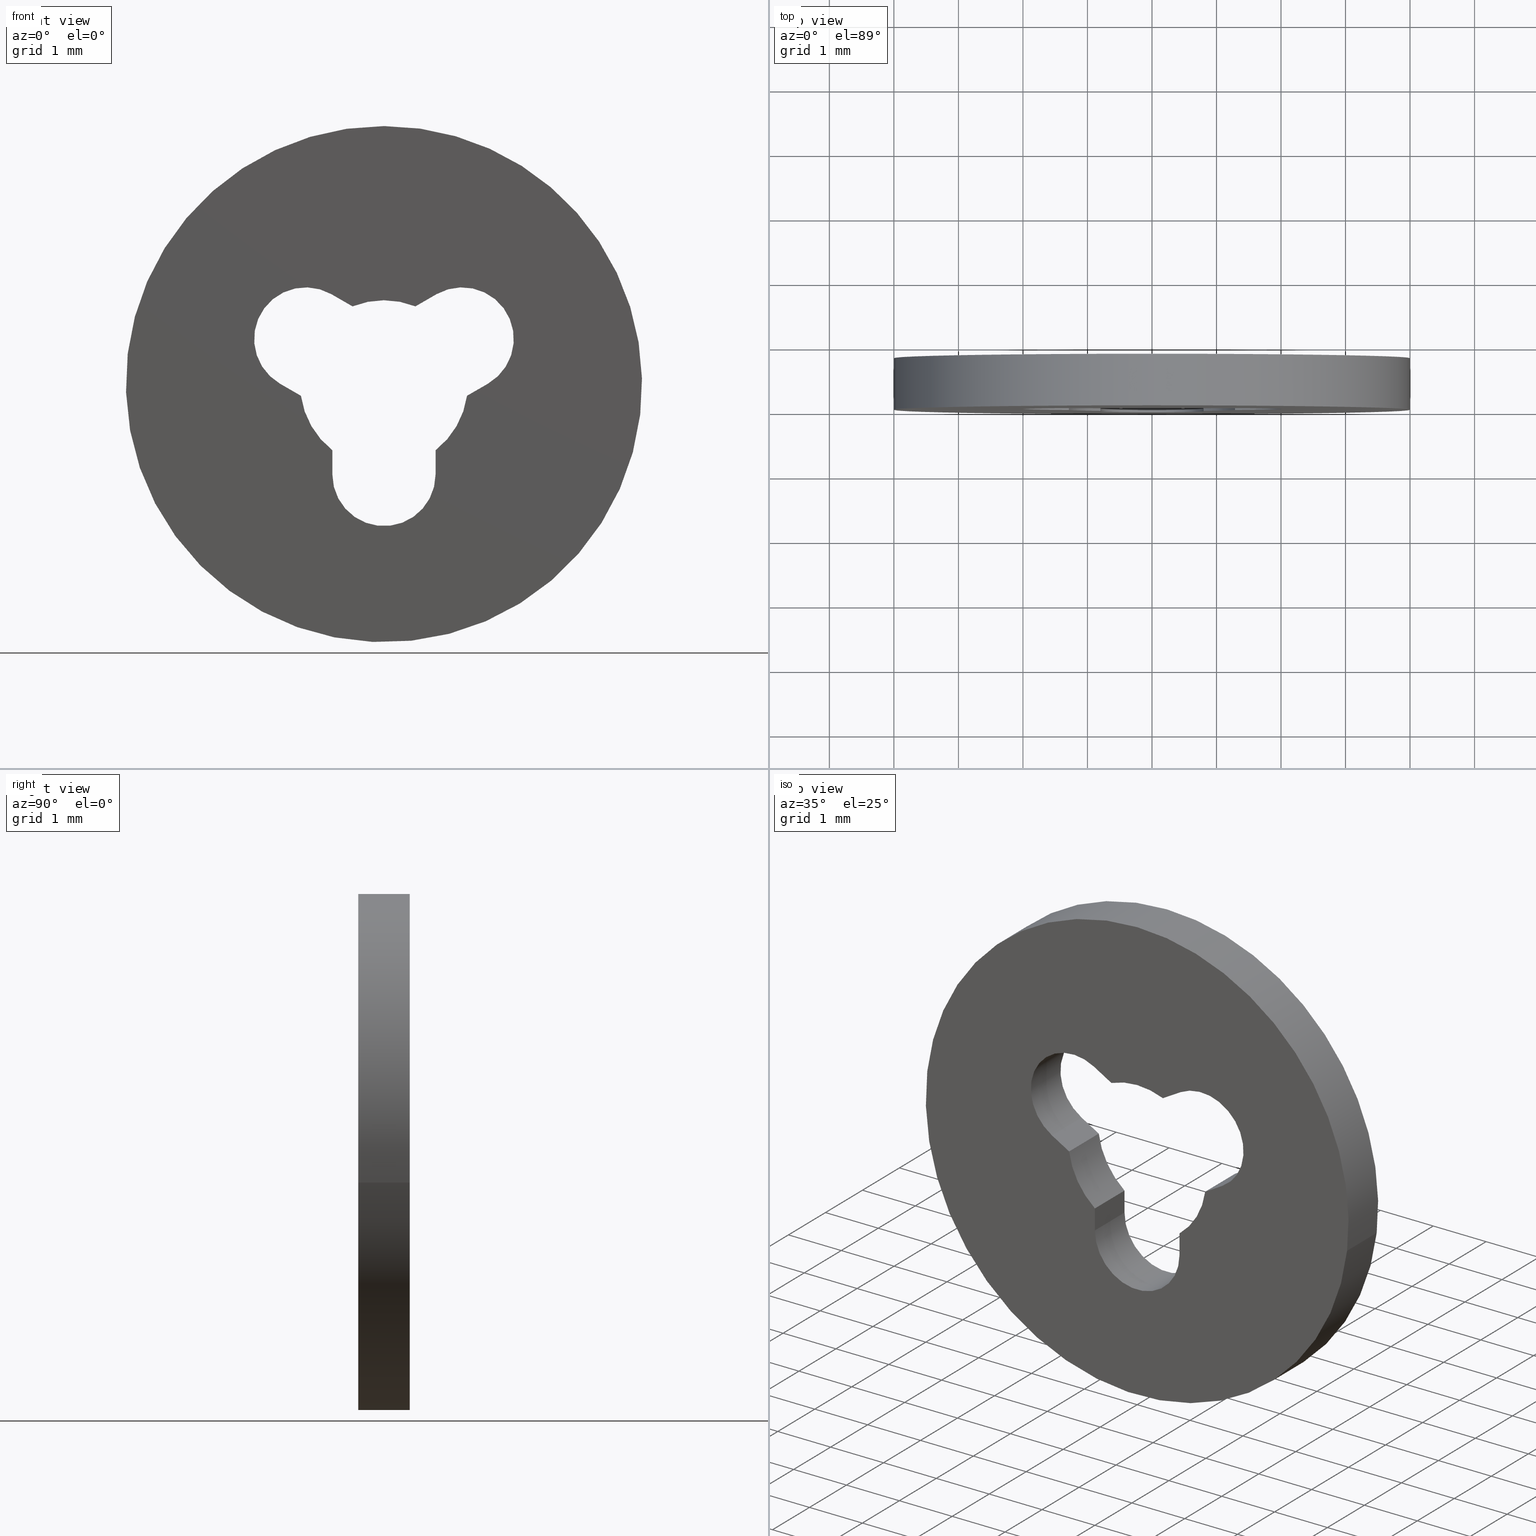
[diagram: canonical four-view strip — front | top / right | iso, engineering-drawing reading convention]
A machine part, canonical four-view strip (front | top / right | iso — engineering-drawing reading convention). The complete STEP part file that produces these views, byte-faithful:
ISO-10303-21;
HEADER;

FILE_DESCRIPTION( (''), '2;1');
FILE_NAME ('PC007.134708.TM_147V_1BK_6098.stp','2025-07-23T13:38:27',(''),(''),'spGate 19.8.4 (****-****-****-****)','','');

FILE_SCHEMA (('AUTOMOTIVE_DESIGN'));
ENDSEC;

DATA;
#10=(GEOMETRIC_REPRESENTATION_CONTEXT(3) GLOBAL_UNCERTAINTY_ASSIGNED_CONTEXT((#11)) GLOBAL_UNIT_ASSIGNED_CONTEXT((#12,#13,#14)) REPRESENTATION_CONTEXT('ID1','3D'));
#11=UNCERTAINTY_MEASURE_WITH_UNIT(LENGTH_MEASURE(0.01),#15,'DISTANCE_ACCURACY_VALUE','Maximum model space distance between geometric entities at asserted connectivities');
#12=(NAMED_UNIT(*) SI_UNIT($,.STERADIAN.) SOLID_ANGLE_UNIT());
#13=(CONVERSION_BASED_UNIT('DEGREE',#16) NAMED_UNIT(#17) PLANE_ANGLE_UNIT());
#14=(LENGTH_UNIT() NAMED_UNIT(*) SI_UNIT(.MILLI.,.METRE.));
#15=(LENGTH_UNIT() NAMED_UNIT(*) SI_UNIT(.MILLI.,.METRE.));
#16=PLANE_ANGLE_MEASURE_WITH_UNIT(PLANE_ANGLE_MEASURE(0.01745329252),#18);
#17=DIMENSIONAL_EXPONENTS(0.0,0.0,0.0,0.0,0.0,0.0,0.0);
#18=(NAMED_UNIT(*) PLANE_ANGLE_UNIT() SI_UNIT($,.RADIAN.));
#19=MANIFOLD_SOLID_BREP('TM_147V_1BK',#31);
#20=ADVANCED_BREP_SHAPE_REPRESENTATION('',(#19),#10);
#21=APPLICATION_CONTEXT('');
#22=APPLICATION_PROTOCOL_DEFINITION('International Standard','automotive_design',1999,#21);
#23=PRODUCT_DEFINITION_CONTEXT('',#21,'design');
#24=PRODUCT_CONTEXT('',#21,'mechanical');
#25=PRODUCT('','','',(#24));
#26=PRODUCT_DEFINITION_FORMATION_WITH_SPECIFIED_SOURCE('','',#25,.NOT_KNOWN.);
#27=PRODUCT_RELATED_PRODUCT_CATEGORY('tool','tool',(#25));
#28=PRODUCT_DEFINITION('','',#26,#23);
#29=PRODUCT_DEFINITION_SHAPE('','',#28);
#30=SHAPE_DEFINITION_REPRESENTATION(#29,#20);
#31=CLOSED_SHELL('',(#40,#41,#42,#43,#44,#45,#46,#47,#48,#49,#50,#51,#52,#53,#54,#55));
#32=COLOUR_RGB('',0.00000000000E+00,0.00000000000E+00,0.00000000000E+00);
#33=FILL_AREA_STYLE_COLOUR('',#32);
#34=FILL_AREA_STYLE('',(#33));
#35=SURFACE_STYLE_FILL_AREA(#34);
#36=SURFACE_SIDE_STYLE('',(#35));
#37=SURFACE_STYLE_USAGE(.BOTH.,#36);
#38=PRESENTATION_STYLE_ASSIGNMENT((#37));
#39=STYLED_ITEM('',(#38),#19);
#40=ADVANCED_FACE('',(#57,#58),#56,.T.);
#41=ADVANCED_FACE('',(#68,#69),#67,.F.);
#42=ADVANCED_FACE('',(#79),#78,.F.);
#43=ADVANCED_FACE('',(#89),#88,.F.);
#44=ADVANCED_FACE('',(#99),#98,.F.);
#45=ADVANCED_FACE('',(#109),#108,.F.);
#46=ADVANCED_FACE('',(#119),#118,.F.);
#47=ADVANCED_FACE('',(#129),#128,.F.);
#48=ADVANCED_FACE('',(#139),#138,.F.);
#49=ADVANCED_FACE('',(#149),#148,.F.);
#50=ADVANCED_FACE('',(#159),#158,.F.);
#51=ADVANCED_FACE('',(#169),#168,.F.);
#52=ADVANCED_FACE('',(#179),#178,.F.);
#53=ADVANCED_FACE('',(#189),#188,.F.);
#54=ADVANCED_FACE('',(#199),#198,.T.);
#55=ADVANCED_FACE('',(#209),#208,.T.);
#56=PLANE('',#221);
#57=FACE_OUTER_BOUND('',#222,.T.);
#58=FACE_BOUND('',#223,.T.);
#59=COLOUR_RGB('',1.00000000000E+00,1.00000000000E+00,1.00000000000E+00);
#60=FILL_AREA_STYLE_COLOUR('',#59);
#61=FILL_AREA_STYLE('',(#60));
#62=SURFACE_STYLE_FILL_AREA(#61);
#63=SURFACE_SIDE_STYLE('',(#62));
#64=SURFACE_STYLE_USAGE(.BOTH.,#63);
#65=PRESENTATION_STYLE_ASSIGNMENT((#64));
#66=STYLED_ITEM('',(#65),#40);
#67=PLANE('',#227);
#68=FACE_OUTER_BOUND('',#228,.T.);
#69=FACE_BOUND('',#229,.T.);
#70=COLOUR_RGB('',1.00000000000E+00,1.00000000000E+00,1.00000000000E+00);
#71=FILL_AREA_STYLE_COLOUR('',#70);
#72=FILL_AREA_STYLE('',(#71));
#73=SURFACE_STYLE_FILL_AREA(#72);
#74=SURFACE_SIDE_STYLE('',(#73));
#75=SURFACE_STYLE_USAGE(.BOTH.,#74);
#76=PRESENTATION_STYLE_ASSIGNMENT((#75));
#77=STYLED_ITEM('',(#76),#41);
#78=PLANE('',#233);
#79=FACE_OUTER_BOUND('',#234,.T.);
#80=COLOUR_RGB('',1.00000000000E+00,1.00000000000E+00,1.00000000000E+00);
#81=FILL_AREA_STYLE_COLOUR('',#80);
#82=FILL_AREA_STYLE('',(#81));
#83=SURFACE_STYLE_FILL_AREA(#82);
#84=SURFACE_SIDE_STYLE('',(#83));
#85=SURFACE_STYLE_USAGE(.BOTH.,#84);
#86=PRESENTATION_STYLE_ASSIGNMENT((#85));
#87=STYLED_ITEM('',(#86),#42);
#88=CYLINDRICAL_SURFACE('',#238,1.30000000000E+00);
#89=FACE_OUTER_BOUND('',#239,.T.);
#90=COLOUR_RGB('',1.00000000000E+00,1.00000000000E+00,1.00000000000E+00);
#91=FILL_AREA_STYLE_COLOUR('',#90);
#92=FILL_AREA_STYLE('',(#91));
#93=SURFACE_STYLE_FILL_AREA(#92);
#94=SURFACE_SIDE_STYLE('',(#93));
#95=SURFACE_STYLE_USAGE(.BOTH.,#94);
#96=PRESENTATION_STYLE_ASSIGNMENT((#95));
#97=STYLED_ITEM('',(#96),#43);
#98=PLANE('',#243);
#99=FACE_OUTER_BOUND('',#244,.T.);
#100=COLOUR_RGB('',1.00000000000E+00,1.00000000000E+00,1.00000000000E+00);
#101=FILL_AREA_STYLE_COLOUR('',#100);
#102=FILL_AREA_STYLE('',(#101));
#103=SURFACE_STYLE_FILL_AREA(#102);
#104=SURFACE_SIDE_STYLE('',(#103));
#105=SURFACE_STYLE_USAGE(.BOTH.,#104);
#106=PRESENTATION_STYLE_ASSIGNMENT((#105));
#107=STYLED_ITEM('',(#106),#44);
#108=CYLINDRICAL_SURFACE('',#248,8.00000000000E-01);
#109=FACE_OUTER_BOUND('',#249,.T.);
#110=COLOUR_RGB('',1.00000000000E+00,1.00000000000E+00,1.00000000000E+00);
#111=FILL_AREA_STYLE_COLOUR('',#110);
#112=FILL_AREA_STYLE('',(#111));
#113=SURFACE_STYLE_FILL_AREA(#112);
#114=SURFACE_SIDE_STYLE('',(#113));
#115=SURFACE_STYLE_USAGE(.BOTH.,#114);
#116=PRESENTATION_STYLE_ASSIGNMENT((#115));
#117=STYLED_ITEM('',(#116),#45);
#118=PLANE('',#253);
#119=FACE_OUTER_BOUND('',#254,.T.);
#120=COLOUR_RGB('',1.00000000000E+00,1.00000000000E+00,1.00000000000E+00);
#121=FILL_AREA_STYLE_COLOUR('',#120);
#122=FILL_AREA_STYLE('',(#121));
#123=SURFACE_STYLE_FILL_AREA(#122);
#124=SURFACE_SIDE_STYLE('',(#123));
#125=SURFACE_STYLE_USAGE(.BOTH.,#124);
#126=PRESENTATION_STYLE_ASSIGNMENT((#125));
#127=STYLED_ITEM('',(#126),#46);
#128=CYLINDRICAL_SURFACE('',#258,1.30000000000E+00);
#129=FACE_OUTER_BOUND('',#259,.T.);
#130=COLOUR_RGB('',1.00000000000E+00,1.00000000000E+00,1.00000000000E+00);
#131=FILL_AREA_STYLE_COLOUR('',#130);
#132=FILL_AREA_STYLE('',(#131));
#133=SURFACE_STYLE_FILL_AREA(#132);
#134=SURFACE_SIDE_STYLE('',(#133));
#135=SURFACE_STYLE_USAGE(.BOTH.,#134);
#136=PRESENTATION_STYLE_ASSIGNMENT((#135));
#137=STYLED_ITEM('',(#136),#47);
#138=PLANE('',#263);
#139=FACE_OUTER_BOUND('',#264,.T.);
#140=COLOUR_RGB('',1.00000000000E+00,1.00000000000E+00,1.00000000000E+00);
#141=FILL_AREA_STYLE_COLOUR('',#140);
#142=FILL_AREA_STYLE('',(#141));
#143=SURFACE_STYLE_FILL_AREA(#142);
#144=SURFACE_SIDE_STYLE('',(#143));
#145=SURFACE_STYLE_USAGE(.BOTH.,#144);
#146=PRESENTATION_STYLE_ASSIGNMENT((#145));
#147=STYLED_ITEM('',(#146),#48);
#148=CYLINDRICAL_SURFACE('',#268,8.00034399239E-01);
#149=FACE_OUTER_BOUND('',#269,.T.);
#150=COLOUR_RGB('',1.00000000000E+00,1.00000000000E+00,1.00000000000E+00);
#151=FILL_AREA_STYLE_COLOUR('',#150);
#152=FILL_AREA_STYLE('',(#151));
#153=SURFACE_STYLE_FILL_AREA(#152);
#154=SURFACE_SIDE_STYLE('',(#153));
#155=SURFACE_STYLE_USAGE(.BOTH.,#154);
#156=PRESENTATION_STYLE_ASSIGNMENT((#155));
#157=STYLED_ITEM('',(#156),#49);
#158=PLANE('',#273);
#159=FACE_OUTER_BOUND('',#274,.T.);
#160=COLOUR_RGB('',1.00000000000E+00,1.00000000000E+00,1.00000000000E+00);
#161=FILL_AREA_STYLE_COLOUR('',#160);
#162=FILL_AREA_STYLE('',(#161));
#163=SURFACE_STYLE_FILL_AREA(#162);
#164=SURFACE_SIDE_STYLE('',(#163));
#165=SURFACE_STYLE_USAGE(.BOTH.,#164);
#166=PRESENTATION_STYLE_ASSIGNMENT((#165));
#167=STYLED_ITEM('',(#166),#50);
#168=CYLINDRICAL_SURFACE('',#278,1.30000000000E+00);
#169=FACE_OUTER_BOUND('',#279,.T.);
#170=COLOUR_RGB('',1.00000000000E+00,1.00000000000E+00,1.00000000000E+00);
#171=FILL_AREA_STYLE_COLOUR('',#170);
#172=FILL_AREA_STYLE('',(#171));
#173=SURFACE_STYLE_FILL_AREA(#172);
#174=SURFACE_SIDE_STYLE('',(#173));
#175=SURFACE_STYLE_USAGE(.BOTH.,#174);
#176=PRESENTATION_STYLE_ASSIGNMENT((#175));
#177=STYLED_ITEM('',(#176),#51);
#178=PLANE('',#283);
#179=FACE_OUTER_BOUND('',#284,.T.);
#180=COLOUR_RGB('',1.00000000000E+00,1.00000000000E+00,1.00000000000E+00);
#181=FILL_AREA_STYLE_COLOUR('',#180);
#182=FILL_AREA_STYLE('',(#181));
#183=SURFACE_STYLE_FILL_AREA(#182);
#184=SURFACE_SIDE_STYLE('',(#183));
#185=SURFACE_STYLE_USAGE(.BOTH.,#184);
#186=PRESENTATION_STYLE_ASSIGNMENT((#185));
#187=STYLED_ITEM('',(#186),#52);
#188=CYLINDRICAL_SURFACE('',#288,8.00034399239E-01);
#189=FACE_OUTER_BOUND('',#289,.T.);
#190=COLOUR_RGB('',1.00000000000E+00,1.00000000000E+00,1.00000000000E+00);
#191=FILL_AREA_STYLE_COLOUR('',#190);
#192=FILL_AREA_STYLE('',(#191));
#193=SURFACE_STYLE_FILL_AREA(#192);
#194=SURFACE_SIDE_STYLE('',(#193));
#195=SURFACE_STYLE_USAGE(.BOTH.,#194);
#196=PRESENTATION_STYLE_ASSIGNMENT((#195));
#197=STYLED_ITEM('',(#196),#53);
#198=CYLINDRICAL_SURFACE('',#293,4.00000000000E+00);
#199=FACE_OUTER_BOUND('',#294,.T.);
#200=COLOUR_RGB('',1.00000000000E+00,1.00000000000E+00,1.00000000000E+00);
#201=FILL_AREA_STYLE_COLOUR('',#200);
#202=FILL_AREA_STYLE('',(#201));
#203=SURFACE_STYLE_FILL_AREA(#202);
#204=SURFACE_SIDE_STYLE('',(#203));
#205=SURFACE_STYLE_USAGE(.BOTH.,#204);
#206=PRESENTATION_STYLE_ASSIGNMENT((#205));
#207=STYLED_ITEM('',(#206),#54);
#208=CYLINDRICAL_SURFACE('',#298,4.00000000000E+00);
#209=FACE_OUTER_BOUND('',#299,.T.);
#210=COLOUR_RGB('',1.00000000000E+00,1.00000000000E+00,1.00000000000E+00);
#211=FILL_AREA_STYLE_COLOUR('',#210);
#212=FILL_AREA_STYLE('',(#211));
#213=SURFACE_STYLE_FILL_AREA(#212);
#214=SURFACE_SIDE_STYLE('',(#213));
#215=SURFACE_STYLE_USAGE(.BOTH.,#214);
#216=PRESENTATION_STYLE_ASSIGNMENT((#215));
#217=STYLED_ITEM('',(#216),#55);
#218=CARTESIAN_POINT('',(-8.31384387633E+00,8.00000000000E-01,5.20000000000E+00));
#219=DIRECTION('',(-0.00000000000E+00,1.00000000000E+00,0.00000000000E+00));
#220=DIRECTION('',(1.00000000000E+00,0.00000000000E+00,0.00000000000E+00));
#221=AXIS2_PLACEMENT_3D('',#218,#219,#220);
#222=EDGE_LOOP('',(#300,#301,#302));
#223=EDGE_LOOP('',(#303,#304,#305,#306,#307,#308,#309,#310,#311,#312,#313,#314));
#224=CARTESIAN_POINT('',(-8.31384387633E+00,0.00000000000E+00,5.20000000000E+00));
#225=DIRECTION('',(-0.00000000000E+00,1.00000000000E+00,0.00000000000E+00));
#226=DIRECTION('',(1.00000000000E+00,0.00000000000E+00,0.00000000000E+00));
#227=AXIS2_PLACEMENT_3D('',#224,#225,#226);
#228=EDGE_LOOP('',(#315,#316,#317));
#229=EDGE_LOOP('',(#318,#319,#320,#321,#322,#323,#324,#325,#326,#327,#328,#329));
#230=CARTESIAN_POINT('',(1.64489910297E+00,-8.00000000000E-02,2.58594822080E-02));
#231=DIRECTION('',(4.99922376475E-01,0.00000000000E+00,-8.66070215109E-01));
#232=DIRECTION('',(-8.66070215109E-01,0.00000000000E+00,-4.99922376475E-01));
#233=AXIS2_PLACEMENT_3D('',#230,#231,#232);
#234=EDGE_LOOP('',(#330,#331,#332,#333));
#235=CARTESIAN_POINT('',(-2.95426830640E-15,-2.05000000000E-02,1.37586729122E-15));
#236=DIRECTION('',(-1.61067084764E-16,-1.00000000000E+00,1.03746964108E-16));
#237=DIRECTION('',(-9.94791062236E-01,1.70803542250E-16,1.01934991521E-01));
#238=AXIS2_PLACEMENT_3D('',#235,#236,#237);
#239=EDGE_LOOP('',(#334,#335,#336,#337));
#240=CARTESIAN_POINT('',(8.00000000000E-01,-8.00000000000E-02,-9.87170013963E-01));
#241=DIRECTION('',(1.00000000000E+00,0.00000000000E+00,0.00000000000E+00));
#242=DIRECTION('',(0.00000000000E+00,0.00000000000E+00,-1.00000000000E+00));
#243=AXIS2_PLACEMENT_3D('',#240,#241,#242);
#244=EDGE_LOOP('',(#338,#339,#340,#341));
#245=CARTESIAN_POINT('',(3.81639164715E-17,-2.05000000000E-02,-1.40000000000E+00));
#246=DIRECTION('',(0.00000000000E+00,-1.00000000000E+00,-0.00000000000E+00));
#247=DIRECTION('',(8.72653549838E-03,0.00000000000E+00,9.99961923064E-01));
#248=AXIS2_PLACEMENT_3D('',#245,#246,#247);
#249=EDGE_LOOP('',(#342,#343,#344,#345));
#250=CARTESIAN_POINT('',(-8.00000000000E-01,-8.00000000000E-02,-1.43753067044E+00));
#251=DIRECTION('',(-1.00000000000E+00,0.00000000000E+00,0.00000000000E+00));
#252=DIRECTION('',(0.00000000000E+00,0.00000000000E+00,1.00000000000E+00));
#253=AXIS2_PLACEMENT_3D('',#250,#251,#252);
#254=EDGE_LOOP('',(#346,#347,#348,#349));
#255=CARTESIAN_POINT('',(-2.61270996098E-15,-2.05000000000E-02,-2.02973229918E-15));
#256=DIRECTION('',(-4.05042966811E-16,-1.00000000000E+00,-6.02916025656E-16));
#257=DIRECTION('',(5.85663533031E-01,-7.25915054563E-16,8.10554270902E-01));
#258=AXIS2_PLACEMENT_3D('',#255,#256,#257);
#259=EDGE_LOOP('',(#350,#351,#352,#353));
#260=CARTESIAN_POINT('',(-1.25489006909E+00,-8.00000000000E-02,-1.99323455501E-01));
#261=DIRECTION('',(-4.99922376475E-01,0.00000000000E+00,-8.66070215109E-01));
#262=DIRECTION('',(-8.66070215109E-01,0.00000000000E+00,4.99922376475E-01));
#263=AXIS2_PLACEMENT_3D('',#260,#261,#262);
#264=EDGE_LOOP('',(#354,#355,#356,#357));
#265=CARTESIAN_POINT('',(-1.21254490187E+00,-2.05000000000E-02,6.99985964243E-01));
#266=DIRECTION('',(2.10890930194E-17,-1.00000000000E+00,-1.12748412902E-17));
#267=DIRECTION('',(8.64886491249E-01,2.38992754055E-17,-5.01967486253E-01));
#268=AXIS2_PLACEMENT_3D('',#265,#266,#267);
#269=EDGE_LOOP('',(#358,#359,#360,#361));
#270=CARTESIAN_POINT('',(-8.49954599076E-01,-8.00000000000E-02,1.41443147153E+00));
#271=DIRECTION('',(5.00122219575E-01,0.00000000000E+00,8.65954828780E-01));
#272=DIRECTION('',(8.65954828780E-01,0.00000000000E+00,-5.00122219575E-01));
#273=AXIS2_PLACEMENT_3D('',#270,#271,#272);
#274=EDGE_LOOP('',(#362,#363,#364,#365));
#275=CARTESIAN_POINT('',(-4.38184226171E-16,-2.05000000000E-02,-9.63649744064E-16));
#276=DIRECTION('',(1.21310384296E-16,-1.00000000000E+00,-1.79586732574E-16));
#277=DIRECTION('',(4.09230742857E-01,2.13504427813E-16,-9.12430928400E-01));
#278=AXIS2_PLACEMENT_3D('',#275,#276,#277);
#279=EDGE_LOOP('',(#366,#367,#368,#369));
#280=CARTESIAN_POINT('',(4.54530720853E-01,-8.00000000000E-02,1.18611672709E+00));
#281=DIRECTION('',(-5.00122219575E-01,0.00000000000E+00,8.65954828780E-01));
#282=DIRECTION('',(8.65954828780E-01,0.00000000000E+00,5.00122219575E-01));
#283=AXIS2_PLACEMENT_3D('',#280,#281,#282);
#284=EDGE_LOOP('',(#370,#371,#372,#373));
#285=CARTESIAN_POINT('',(1.21244490187E+00,-2.05000000000E-02,6.99985964243E-01));
#286=DIRECTION('',(-2.03910230877E-17,-1.00000000000E+00,-1.24931208245E-17));
#287=DIRECTION('',(-8.70399834658E-01,2.38992754055E-17,-4.92345537023E-01));
#288=AXIS2_PLACEMENT_3D('',#285,#286,#287);
#289=EDGE_LOOP('',(#374,#375,#376,#377));
#290=CARTESIAN_POINT('',(-2.26487813248E-16,8.20000000000E-01,1.36315784584E-16));
#291=DIRECTION('',(3.07055953275E-17,1.00000000000E+00,2.58322924375E-16));
#292=DIRECTION('',(9.93009526364E-01,-6.16297582204E-32,-1.18034234657E-01));
#293=AXIS2_PLACEMENT_3D('',#290,#291,#292);
#294=EDGE_LOOP('',(#378,#379,#380,#381));
#295=CARTESIAN_POINT('',(-2.26487813248E-16,8.20000000000E-01,1.36315784584E-16));
#296=DIRECTION('',(3.07055953275E-17,1.00000000000E+00,2.58322924375E-16));
#297=DIRECTION('',(9.93009526364E-01,-6.16297582204E-32,-1.18034234657E-01));
#298=AXIS2_PLACEMENT_3D('',#295,#296,#297);
#299=EDGE_LOOP('',(#382,#383,#384,#385,#386,#387));
#300=ORIENTED_EDGE('',*,*,#388,.F.);
#301=ORIENTED_EDGE('',*,*,#389,.F.);
#302=ORIENTED_EDGE('',*,*,#390,.F.);
#303=ORIENTED_EDGE('',*,*,#391,.T.);
#304=ORIENTED_EDGE('',*,*,#392,.T.);
#305=ORIENTED_EDGE('',*,*,#393,.T.);
#306=ORIENTED_EDGE('',*,*,#394,.T.);
#307=ORIENTED_EDGE('',*,*,#395,.T.);
#308=ORIENTED_EDGE('',*,*,#396,.T.);
#309=ORIENTED_EDGE('',*,*,#397,.T.);
#310=ORIENTED_EDGE('',*,*,#398,.T.);
#311=ORIENTED_EDGE('',*,*,#399,.T.);
#312=ORIENTED_EDGE('',*,*,#400,.T.);
#313=ORIENTED_EDGE('',*,*,#401,.T.);
#314=ORIENTED_EDGE('',*,*,#402,.T.);
#315=ORIENTED_EDGE('',*,*,#403,.T.);
#316=ORIENTED_EDGE('',*,*,#404,.T.);
#317=ORIENTED_EDGE('',*,*,#405,.T.);
#318=ORIENTED_EDGE('',*,*,#406,.F.);
#319=ORIENTED_EDGE('',*,*,#407,.F.);
#320=ORIENTED_EDGE('',*,*,#408,.F.);
#321=ORIENTED_EDGE('',*,*,#409,.F.);
#322=ORIENTED_EDGE('',*,*,#410,.F.);
#323=ORIENTED_EDGE('',*,*,#411,.F.);
#324=ORIENTED_EDGE('',*,*,#412,.F.);
#325=ORIENTED_EDGE('',*,*,#413,.F.);
#326=ORIENTED_EDGE('',*,*,#414,.F.);
#327=ORIENTED_EDGE('',*,*,#415,.F.);
#328=ORIENTED_EDGE('',*,*,#416,.F.);
#329=ORIENTED_EDGE('',*,*,#417,.F.);
#330=ORIENTED_EDGE('',*,*,#407,.T.);
#331=ORIENTED_EDGE('',*,*,#418,.F.);
#332=ORIENTED_EDGE('',*,*,#391,.F.);
#333=ORIENTED_EDGE('',*,*,#419,.T.);
#334=ORIENTED_EDGE('',*,*,#408,.T.);
#335=ORIENTED_EDGE('',*,*,#419,.F.);
#336=ORIENTED_EDGE('',*,*,#402,.F.);
#337=ORIENTED_EDGE('',*,*,#420,.T.);
#338=ORIENTED_EDGE('',*,*,#409,.T.);
#339=ORIENTED_EDGE('',*,*,#420,.F.);
#340=ORIENTED_EDGE('',*,*,#401,.F.);
#341=ORIENTED_EDGE('',*,*,#421,.T.);
#342=ORIENTED_EDGE('',*,*,#410,.T.);
#343=ORIENTED_EDGE('',*,*,#421,.F.);
#344=ORIENTED_EDGE('',*,*,#400,.F.);
#345=ORIENTED_EDGE('',*,*,#422,.T.);
#346=ORIENTED_EDGE('',*,*,#411,.T.);
#347=ORIENTED_EDGE('',*,*,#422,.F.);
#348=ORIENTED_EDGE('',*,*,#399,.F.);
#349=ORIENTED_EDGE('',*,*,#423,.T.);
#350=ORIENTED_EDGE('',*,*,#412,.T.);
#351=ORIENTED_EDGE('',*,*,#423,.F.);
#352=ORIENTED_EDGE('',*,*,#398,.F.);
#353=ORIENTED_EDGE('',*,*,#424,.T.);
#354=ORIENTED_EDGE('',*,*,#413,.T.);
#355=ORIENTED_EDGE('',*,*,#424,.F.);
#356=ORIENTED_EDGE('',*,*,#397,.F.);
#357=ORIENTED_EDGE('',*,*,#425,.T.);
#358=ORIENTED_EDGE('',*,*,#414,.T.);
#359=ORIENTED_EDGE('',*,*,#425,.F.);
#360=ORIENTED_EDGE('',*,*,#396,.F.);
#361=ORIENTED_EDGE('',*,*,#426,.T.);
#362=ORIENTED_EDGE('',*,*,#415,.T.);
#363=ORIENTED_EDGE('',*,*,#426,.F.);
#364=ORIENTED_EDGE('',*,*,#395,.F.);
#365=ORIENTED_EDGE('',*,*,#427,.T.);
#366=ORIENTED_EDGE('',*,*,#416,.T.);
#367=ORIENTED_EDGE('',*,*,#427,.F.);
#368=ORIENTED_EDGE('',*,*,#394,.F.);
#369=ORIENTED_EDGE('',*,*,#428,.T.);
#370=ORIENTED_EDGE('',*,*,#417,.T.);
#371=ORIENTED_EDGE('',*,*,#428,.F.);
#372=ORIENTED_EDGE('',*,*,#393,.F.);
#373=ORIENTED_EDGE('',*,*,#429,.T.);
#374=ORIENTED_EDGE('',*,*,#406,.T.);
#375=ORIENTED_EDGE('',*,*,#429,.F.);
#376=ORIENTED_EDGE('',*,*,#392,.F.);
#377=ORIENTED_EDGE('',*,*,#418,.T.);
#378=ORIENTED_EDGE('',*,*,#389,.T.);
#379=ORIENTED_EDGE('',*,*,#430,.F.);
#380=ORIENTED_EDGE('',*,*,#404,.F.);
#381=ORIENTED_EDGE('',*,*,#431,.T.);
#382=ORIENTED_EDGE('',*,*,#403,.F.);
#383=ORIENTED_EDGE('',*,*,#405,.F.);
#384=ORIENTED_EDGE('',*,*,#430,.T.);
#385=ORIENTED_EDGE('',*,*,#388,.T.);
#386=ORIENTED_EDGE('',*,*,#390,.T.);
#387=ORIENTED_EDGE('',*,*,#431,.F.);
#388=EDGE_CURVE('',#432,#433,#434,.T.);
#389=EDGE_CURVE('',#440,#432,#441,.T.);
#390=EDGE_CURVE('',#433,#440,#447,.T.);
#391=EDGE_CURVE('',#453,#454,#455,.T.);
#392=EDGE_CURVE('',#454,#461,#462,.T.);
#393=EDGE_CURVE('',#461,#468,#469,.T.);
#394=EDGE_CURVE('',#468,#475,#476,.T.);
#395=EDGE_CURVE('',#475,#482,#483,.T.);
#396=EDGE_CURVE('',#482,#489,#490,.T.);
#397=EDGE_CURVE('',#489,#496,#497,.T.);
#398=EDGE_CURVE('',#496,#503,#504,.T.);
#399=EDGE_CURVE('',#503,#510,#511,.T.);
#400=EDGE_CURVE('',#510,#517,#518,.T.);
#401=EDGE_CURVE('',#517,#524,#525,.T.);
#402=EDGE_CURVE('',#524,#453,#531,.T.);
#403=EDGE_CURVE('',#537,#538,#539,.T.);
#404=EDGE_CURVE('',#538,#545,#546,.T.);
#405=EDGE_CURVE('',#545,#537,#552,.T.);
#406=EDGE_CURVE('',#558,#559,#560,.T.);
#407=EDGE_CURVE('',#566,#558,#567,.T.);
#408=EDGE_CURVE('',#573,#566,#574,.T.);
#409=EDGE_CURVE('',#580,#573,#581,.T.);
#410=EDGE_CURVE('',#587,#580,#588,.T.);
#411=EDGE_CURVE('',#594,#587,#595,.T.);
#412=EDGE_CURVE('',#601,#594,#602,.T.);
#413=EDGE_CURVE('',#608,#601,#609,.T.);
#414=EDGE_CURVE('',#615,#608,#616,.T.);
#415=EDGE_CURVE('',#622,#615,#623,.T.);
#416=EDGE_CURVE('',#629,#622,#630,.T.);
#417=EDGE_CURVE('',#559,#629,#636,.T.);
#418=EDGE_CURVE('',#454,#558,#642,.T.);
#419=EDGE_CURVE('',#453,#566,#648,.T.);
#420=EDGE_CURVE('',#524,#573,#654,.T.);
#421=EDGE_CURVE('',#517,#580,#660,.T.);
#422=EDGE_CURVE('',#510,#587,#666,.T.);
#423=EDGE_CURVE('',#503,#594,#672,.T.);
#424=EDGE_CURVE('',#496,#601,#678,.T.);
#425=EDGE_CURVE('',#489,#608,#684,.T.);
#426=EDGE_CURVE('',#482,#615,#690,.T.);
#427=EDGE_CURVE('',#475,#622,#696,.T.);
#428=EDGE_CURVE('',#468,#629,#702,.T.);
#429=EDGE_CURVE('',#461,#559,#708,.T.);
#430=EDGE_CURVE('',#545,#432,#714,.T.);
#431=EDGE_CURVE('',#538,#440,#720,.T.);
#432=VERTEX_POINT('',#726);
#433=VERTEX_POINT('',#727);
#434=CIRCLE('',#731,4.00000000000E+00);
#435=COLOUR_RGB('',1.00000000000E+00,1.00000000000E+00,1.00000000000E+00);
#436=DRAUGHTING_PRE_DEFINED_CURVE_FONT('continuous');
#437=CURVE_STYLE( '',#436, POSITIVE_LENGTH_MEASURE(1.00000000000E-06),#435);
#438=PRESENTATION_STYLE_ASSIGNMENT((#437));
#439=STYLED_ITEM('',(#438),#388);
#440=VERTEX_POINT('',#732);
#441=CIRCLE('',#736,4.00000000000E+00);
#442=COLOUR_RGB('',1.00000000000E+00,1.00000000000E+00,1.00000000000E+00);
#443=DRAUGHTING_PRE_DEFINED_CURVE_FONT('continuous');
#444=CURVE_STYLE( '',#443, POSITIVE_LENGTH_MEASURE(1.00000000000E-06),#442);
#445=PRESENTATION_STYLE_ASSIGNMENT((#444));
#446=STYLED_ITEM('',(#445),#389);
#447=CIRCLE('',#740,4.00000000000E+00);
#448=COLOUR_RGB('',1.00000000000E+00,1.00000000000E+00,1.00000000000E+00);
#449=DRAUGHTING_PRE_DEFINED_CURVE_FONT('continuous');
#450=CURVE_STYLE( '',#449, POSITIVE_LENGTH_MEASURE(1.00000000000E-06),#448);
#451=PRESENTATION_STYLE_ASSIGNMENT((#450));
#452=STYLED_ITEM('',(#451),#390);
#453=VERTEX_POINT('',#741);
#454=VERTEX_POINT('',#742);
#455=LINE('',#743,#744);
#456=COLOUR_RGB('',1.00000000000E+00,1.00000000000E+00,1.00000000000E+00);
#457=DRAUGHTING_PRE_DEFINED_CURVE_FONT('continuous');
#458=CURVE_STYLE( '',#457, POSITIVE_LENGTH_MEASURE(1.00000000000E-06),#456);
#459=PRESENTATION_STYLE_ASSIGNMENT((#458));
#460=STYLED_ITEM('',(#459),#391);
#461=VERTEX_POINT('',#746);
#462=CIRCLE('',#750,8.00034399239E-01);
#463=COLOUR_RGB('',1.00000000000E+00,1.00000000000E+00,1.00000000000E+00);
#464=DRAUGHTING_PRE_DEFINED_CURVE_FONT('continuous');
#465=CURVE_STYLE( '',#464, POSITIVE_LENGTH_MEASURE(1.00000000000E-06),#463);
#466=PRESENTATION_STYLE_ASSIGNMENT((#465));
#467=STYLED_ITEM('',(#466),#392);
#468=VERTEX_POINT('',#751);
#469=LINE('',#752,#753);
#470=COLOUR_RGB('',1.00000000000E+00,1.00000000000E+00,1.00000000000E+00);
#471=DRAUGHTING_PRE_DEFINED_CURVE_FONT('continuous');
#472=CURVE_STYLE( '',#471, POSITIVE_LENGTH_MEASURE(1.00000000000E-06),#470);
#473=PRESENTATION_STYLE_ASSIGNMENT((#472));
#474=STYLED_ITEM('',(#473),#393);
#475=VERTEX_POINT('',#755);
#476=CIRCLE('',#759,1.30000000000E+00);
#477=COLOUR_RGB('',1.00000000000E+00,1.00000000000E+00,1.00000000000E+00);
#478=DRAUGHTING_PRE_DEFINED_CURVE_FONT('continuous');
#479=CURVE_STYLE( '',#478, POSITIVE_LENGTH_MEASURE(1.00000000000E-06),#477);
#480=PRESENTATION_STYLE_ASSIGNMENT((#479));
#481=STYLED_ITEM('',(#480),#394);
#482=VERTEX_POINT('',#760);
#483=LINE('',#761,#762);
#484=COLOUR_RGB('',1.00000000000E+00,1.00000000000E+00,1.00000000000E+00);
#485=DRAUGHTING_PRE_DEFINED_CURVE_FONT('continuous');
#486=CURVE_STYLE( '',#485, POSITIVE_LENGTH_MEASURE(1.00000000000E-06),#484);
#487=PRESENTATION_STYLE_ASSIGNMENT((#486));
#488=STYLED_ITEM('',(#487),#395);
#489=VERTEX_POINT('',#764);
#490=CIRCLE('',#768,8.00034399239E-01);
#491=COLOUR_RGB('',1.00000000000E+00,1.00000000000E+00,1.00000000000E+00);
#492=DRAUGHTING_PRE_DEFINED_CURVE_FONT('continuous');
#493=CURVE_STYLE( '',#492, POSITIVE_LENGTH_MEASURE(1.00000000000E-06),#491);
#494=PRESENTATION_STYLE_ASSIGNMENT((#493));
#495=STYLED_ITEM('',(#494),#396);
#496=VERTEX_POINT('',#769);
#497=LINE('',#770,#771);
#498=COLOUR_RGB('',1.00000000000E+00,1.00000000000E+00,1.00000000000E+00);
#499=DRAUGHTING_PRE_DEFINED_CURVE_FONT('continuous');
#500=CURVE_STYLE( '',#499, POSITIVE_LENGTH_MEASURE(1.00000000000E-06),#498);
#501=PRESENTATION_STYLE_ASSIGNMENT((#500));
#502=STYLED_ITEM('',(#501),#397);
#503=VERTEX_POINT('',#773);
#504=CIRCLE('',#777,1.30000000000E+00);
#505=COLOUR_RGB('',1.00000000000E+00,1.00000000000E+00,1.00000000000E+00);
#506=DRAUGHTING_PRE_DEFINED_CURVE_FONT('continuous');
#507=CURVE_STYLE( '',#506, POSITIVE_LENGTH_MEASURE(1.00000000000E-06),#505);
#508=PRESENTATION_STYLE_ASSIGNMENT((#507));
#509=STYLED_ITEM('',(#508),#398);
#510=VERTEX_POINT('',#778);
#511=LINE('',#779,#780);
#512=COLOUR_RGB('',1.00000000000E+00,1.00000000000E+00,1.00000000000E+00);
#513=DRAUGHTING_PRE_DEFINED_CURVE_FONT('continuous');
#514=CURVE_STYLE( '',#513, POSITIVE_LENGTH_MEASURE(1.00000000000E-06),#512);
#515=PRESENTATION_STYLE_ASSIGNMENT((#514));
#516=STYLED_ITEM('',(#515),#399);
#517=VERTEX_POINT('',#782);
#518=CIRCLE('',#786,8.00000000000E-01);
#519=COLOUR_RGB('',1.00000000000E+00,1.00000000000E+00,1.00000000000E+00);
#520=DRAUGHTING_PRE_DEFINED_CURVE_FONT('continuous');
#521=CURVE_STYLE( '',#520, POSITIVE_LENGTH_MEASURE(1.00000000000E-06),#519);
#522=PRESENTATION_STYLE_ASSIGNMENT((#521));
#523=STYLED_ITEM('',(#522),#400);
#524=VERTEX_POINT('',#787);
#525=LINE('',#788,#789);
#526=COLOUR_RGB('',1.00000000000E+00,1.00000000000E+00,1.00000000000E+00);
#527=DRAUGHTING_PRE_DEFINED_CURVE_FONT('continuous');
#528=CURVE_STYLE( '',#527, POSITIVE_LENGTH_MEASURE(1.00000000000E-06),#526);
#529=PRESENTATION_STYLE_ASSIGNMENT((#528));
#530=STYLED_ITEM('',(#529),#401);
#531=CIRCLE('',#794,1.30000373925E+00);
#532=COLOUR_RGB('',1.00000000000E+00,1.00000000000E+00,1.00000000000E+00);
#533=DRAUGHTING_PRE_DEFINED_CURVE_FONT('continuous');
#534=CURVE_STYLE( '',#533, POSITIVE_LENGTH_MEASURE(1.00000000000E-06),#532);
#535=PRESENTATION_STYLE_ASSIGNMENT((#534));
#536=STYLED_ITEM('',(#535),#402);
#537=VERTEX_POINT('',#795);
#538=VERTEX_POINT('',#796);
#539=CIRCLE('',#800,4.00000000000E+00);
#540=COLOUR_RGB('',1.00000000000E+00,1.00000000000E+00,1.00000000000E+00);
#541=DRAUGHTING_PRE_DEFINED_CURVE_FONT('continuous');
#542=CURVE_STYLE( '',#541, POSITIVE_LENGTH_MEASURE(1.00000000000E-06),#540);
#543=PRESENTATION_STYLE_ASSIGNMENT((#542));
#544=STYLED_ITEM('',(#543),#403);
#545=VERTEX_POINT('',#801);
#546=CIRCLE('',#805,4.00000000000E+00);
#547=COLOUR_RGB('',1.00000000000E+00,1.00000000000E+00,1.00000000000E+00);
#548=DRAUGHTING_PRE_DEFINED_CURVE_FONT('continuous');
#549=CURVE_STYLE( '',#548, POSITIVE_LENGTH_MEASURE(1.00000000000E-06),#547);
#550=PRESENTATION_STYLE_ASSIGNMENT((#549));
#551=STYLED_ITEM('',(#550),#404);
#552=CIRCLE('',#809,4.00000000000E+00);
#553=COLOUR_RGB('',1.00000000000E+00,1.00000000000E+00,1.00000000000E+00);
#554=DRAUGHTING_PRE_DEFINED_CURVE_FONT('continuous');
#555=CURVE_STYLE( '',#554, POSITIVE_LENGTH_MEASURE(1.00000000000E-06),#553);
#556=PRESENTATION_STYLE_ASSIGNMENT((#555));
#557=STYLED_ITEM('',(#556),#405);
#558=VERTEX_POINT('',#810);
#559=VERTEX_POINT('',#811);
#560=CIRCLE('',#815,8.00034399239E-01);
#561=COLOUR_RGB('',1.00000000000E+00,1.00000000000E+00,1.00000000000E+00);
#562=DRAUGHTING_PRE_DEFINED_CURVE_FONT('continuous');
#563=CURVE_STYLE( '',#562, POSITIVE_LENGTH_MEASURE(1.00000000000E-06),#561);
#564=PRESENTATION_STYLE_ASSIGNMENT((#563));
#565=STYLED_ITEM('',(#564),#406);
#566=VERTEX_POINT('',#816);
#567=LINE('',#817,#818);
#568=COLOUR_RGB('',1.00000000000E+00,1.00000000000E+00,1.00000000000E+00);
#569=DRAUGHTING_PRE_DEFINED_CURVE_FONT('continuous');
#570=CURVE_STYLE( '',#569, POSITIVE_LENGTH_MEASURE(1.00000000000E-06),#568);
#571=PRESENTATION_STYLE_ASSIGNMENT((#570));
#572=STYLED_ITEM('',(#571),#407);
#573=VERTEX_POINT('',#820);
#574=CIRCLE('',#824,1.30000373925E+00);
#575=COLOUR_RGB('',1.00000000000E+00,1.00000000000E+00,1.00000000000E+00);
#576=DRAUGHTING_PRE_DEFINED_CURVE_FONT('continuous');
#577=CURVE_STYLE( '',#576, POSITIVE_LENGTH_MEASURE(1.00000000000E-06),#575);
#578=PRESENTATION_STYLE_ASSIGNMENT((#577));
#579=STYLED_ITEM('',(#578),#408);
#580=VERTEX_POINT('',#825);
#581=LINE('',#826,#827);
#582=COLOUR_RGB('',1.00000000000E+00,1.00000000000E+00,1.00000000000E+00);
#583=DRAUGHTING_PRE_DEFINED_CURVE_FONT('continuous');
#584=CURVE_STYLE( '',#583, POSITIVE_LENGTH_MEASURE(1.00000000000E-06),#582);
#585=PRESENTATION_STYLE_ASSIGNMENT((#584));
#586=STYLED_ITEM('',(#585),#409);
#587=VERTEX_POINT('',#829);
#588=CIRCLE('',#833,8.00000000000E-01);
#589=COLOUR_RGB('',1.00000000000E+00,1.00000000000E+00,1.00000000000E+00);
#590=DRAUGHTING_PRE_DEFINED_CURVE_FONT('continuous');
#591=CURVE_STYLE( '',#590, POSITIVE_LENGTH_MEASURE(1.00000000000E-06),#589);
#592=PRESENTATION_STYLE_ASSIGNMENT((#591));
#593=STYLED_ITEM('',(#592),#410);
#594=VERTEX_POINT('',#834);
#595=LINE('',#835,#836);
#596=COLOUR_RGB('',1.00000000000E+00,1.00000000000E+00,1.00000000000E+00);
#597=DRAUGHTING_PRE_DEFINED_CURVE_FONT('continuous');
#598=CURVE_STYLE( '',#597, POSITIVE_LENGTH_MEASURE(1.00000000000E-06),#596);
#599=PRESENTATION_STYLE_ASSIGNMENT((#598));
#600=STYLED_ITEM('',(#599),#411);
#601=VERTEX_POINT('',#838);
#602=CIRCLE('',#842,1.30000000000E+00);
#603=COLOUR_RGB('',1.00000000000E+00,1.00000000000E+00,1.00000000000E+00);
#604=DRAUGHTING_PRE_DEFINED_CURVE_FONT('continuous');
#605=CURVE_STYLE( '',#604, POSITIVE_LENGTH_MEASURE(1.00000000000E-06),#603);
#606=PRESENTATION_STYLE_ASSIGNMENT((#605));
#607=STYLED_ITEM('',(#606),#412);
#608=VERTEX_POINT('',#843);
#609=LINE('',#844,#845);
#610=COLOUR_RGB('',1.00000000000E+00,1.00000000000E+00,1.00000000000E+00);
#611=DRAUGHTING_PRE_DEFINED_CURVE_FONT('continuous');
#612=CURVE_STYLE( '',#611, POSITIVE_LENGTH_MEASURE(1.00000000000E-06),#610);
#613=PRESENTATION_STYLE_ASSIGNMENT((#612));
#614=STYLED_ITEM('',(#613),#413);
#615=VERTEX_POINT('',#847);
#616=CIRCLE('',#851,8.00034399239E-01);
#617=COLOUR_RGB('',1.00000000000E+00,1.00000000000E+00,1.00000000000E+00);
#618=DRAUGHTING_PRE_DEFINED_CURVE_FONT('continuous');
#619=CURVE_STYLE( '',#618, POSITIVE_LENGTH_MEASURE(1.00000000000E-06),#617);
#620=PRESENTATION_STYLE_ASSIGNMENT((#619));
#621=STYLED_ITEM('',(#620),#414);
#622=VERTEX_POINT('',#852);
#623=LINE('',#853,#854);
#624=COLOUR_RGB('',1.00000000000E+00,1.00000000000E+00,1.00000000000E+00);
#625=DRAUGHTING_PRE_DEFINED_CURVE_FONT('continuous');
#626=CURVE_STYLE( '',#625, POSITIVE_LENGTH_MEASURE(1.00000000000E-06),#624);
#627=PRESENTATION_STYLE_ASSIGNMENT((#626));
#628=STYLED_ITEM('',(#627),#415);
#629=VERTEX_POINT('',#856);
#630=CIRCLE('',#860,1.30000000000E+00);
#631=COLOUR_RGB('',1.00000000000E+00,1.00000000000E+00,1.00000000000E+00);
#632=DRAUGHTING_PRE_DEFINED_CURVE_FONT('continuous');
#633=CURVE_STYLE( '',#632, POSITIVE_LENGTH_MEASURE(1.00000000000E-06),#631);
#634=PRESENTATION_STYLE_ASSIGNMENT((#633));
#635=STYLED_ITEM('',(#634),#416);
#636=LINE('',#861,#862);
#637=COLOUR_RGB('',1.00000000000E+00,1.00000000000E+00,1.00000000000E+00);
#638=DRAUGHTING_PRE_DEFINED_CURVE_FONT('continuous');
#639=CURVE_STYLE( '',#638, POSITIVE_LENGTH_MEASURE(1.00000000000E-06),#637);
#640=PRESENTATION_STYLE_ASSIGNMENT((#639));
#641=STYLED_ITEM('',(#640),#417);
#642=LINE('',#864,#865);
#643=COLOUR_RGB('',1.00000000000E+00,1.00000000000E+00,1.00000000000E+00);
#644=DRAUGHTING_PRE_DEFINED_CURVE_FONT('continuous');
#645=CURVE_STYLE( '',#644, POSITIVE_LENGTH_MEASURE(1.00000000000E-06),#643);
#646=PRESENTATION_STYLE_ASSIGNMENT((#645));
#647=STYLED_ITEM('',(#646),#418);
#648=LINE('',#867,#868);
#649=COLOUR_RGB('',1.00000000000E+00,1.00000000000E+00,1.00000000000E+00);
#650=DRAUGHTING_PRE_DEFINED_CURVE_FONT('continuous');
#651=CURVE_STYLE( '',#650, POSITIVE_LENGTH_MEASURE(1.00000000000E-06),#649);
#652=PRESENTATION_STYLE_ASSIGNMENT((#651));
#653=STYLED_ITEM('',(#652),#419);
#654=LINE('',#870,#871);
#655=COLOUR_RGB('',1.00000000000E+00,1.00000000000E+00,1.00000000000E+00);
#656=DRAUGHTING_PRE_DEFINED_CURVE_FONT('continuous');
#657=CURVE_STYLE( '',#656, POSITIVE_LENGTH_MEASURE(1.00000000000E-06),#655);
#658=PRESENTATION_STYLE_ASSIGNMENT((#657));
#659=STYLED_ITEM('',(#658),#420);
#660=LINE('',#873,#874);
#661=COLOUR_RGB('',1.00000000000E+00,1.00000000000E+00,1.00000000000E+00);
#662=DRAUGHTING_PRE_DEFINED_CURVE_FONT('continuous');
#663=CURVE_STYLE( '',#662, POSITIVE_LENGTH_MEASURE(1.00000000000E-06),#661);
#664=PRESENTATION_STYLE_ASSIGNMENT((#663));
#665=STYLED_ITEM('',(#664),#421);
#666=LINE('',#876,#877);
#667=COLOUR_RGB('',1.00000000000E+00,1.00000000000E+00,1.00000000000E+00);
#668=DRAUGHTING_PRE_DEFINED_CURVE_FONT('continuous');
#669=CURVE_STYLE( '',#668, POSITIVE_LENGTH_MEASURE(1.00000000000E-06),#667);
#670=PRESENTATION_STYLE_ASSIGNMENT((#669));
#671=STYLED_ITEM('',(#670),#422);
#672=LINE('',#879,#880);
#673=COLOUR_RGB('',1.00000000000E+00,1.00000000000E+00,1.00000000000E+00);
#674=DRAUGHTING_PRE_DEFINED_CURVE_FONT('continuous');
#675=CURVE_STYLE( '',#674, POSITIVE_LENGTH_MEASURE(1.00000000000E-06),#673);
#676=PRESENTATION_STYLE_ASSIGNMENT((#675));
#677=STYLED_ITEM('',(#676),#423);
#678=LINE('',#882,#883);
#679=COLOUR_RGB('',1.00000000000E+00,1.00000000000E+00,1.00000000000E+00);
#680=DRAUGHTING_PRE_DEFINED_CURVE_FONT('continuous');
#681=CURVE_STYLE( '',#680, POSITIVE_LENGTH_MEASURE(1.00000000000E-06),#679);
#682=PRESENTATION_STYLE_ASSIGNMENT((#681));
#683=STYLED_ITEM('',(#682),#424);
#684=LINE('',#885,#886);
#685=COLOUR_RGB('',1.00000000000E+00,1.00000000000E+00,1.00000000000E+00);
#686=DRAUGHTING_PRE_DEFINED_CURVE_FONT('continuous');
#687=CURVE_STYLE( '',#686, POSITIVE_LENGTH_MEASURE(1.00000000000E-06),#685);
#688=PRESENTATION_STYLE_ASSIGNMENT((#687));
#689=STYLED_ITEM('',(#688),#425);
#690=LINE('',#888,#889);
#691=COLOUR_RGB('',1.00000000000E+00,1.00000000000E+00,1.00000000000E+00);
#692=DRAUGHTING_PRE_DEFINED_CURVE_FONT('continuous');
#693=CURVE_STYLE( '',#692, POSITIVE_LENGTH_MEASURE(1.00000000000E-06),#691);
#694=PRESENTATION_STYLE_ASSIGNMENT((#693));
#695=STYLED_ITEM('',(#694),#426);
#696=LINE('',#891,#892);
#697=COLOUR_RGB('',1.00000000000E+00,1.00000000000E+00,1.00000000000E+00);
#698=DRAUGHTING_PRE_DEFINED_CURVE_FONT('continuous');
#699=CURVE_STYLE( '',#698, POSITIVE_LENGTH_MEASURE(1.00000000000E-06),#697);
#700=PRESENTATION_STYLE_ASSIGNMENT((#699));
#701=STYLED_ITEM('',(#700),#427);
#702=LINE('',#894,#895);
#703=COLOUR_RGB('',1.00000000000E+00,1.00000000000E+00,1.00000000000E+00);
#704=DRAUGHTING_PRE_DEFINED_CURVE_FONT('continuous');
#705=CURVE_STYLE( '',#704, POSITIVE_LENGTH_MEASURE(1.00000000000E-06),#703);
#706=PRESENTATION_STYLE_ASSIGNMENT((#705));
#707=STYLED_ITEM('',(#706),#428);
#708=LINE('',#897,#898);
#709=COLOUR_RGB('',1.00000000000E+00,1.00000000000E+00,1.00000000000E+00);
#710=DRAUGHTING_PRE_DEFINED_CURVE_FONT('continuous');
#711=CURVE_STYLE( '',#710, POSITIVE_LENGTH_MEASURE(1.00000000000E-06),#709);
#712=PRESENTATION_STYLE_ASSIGNMENT((#711));
#713=STYLED_ITEM('',(#712),#429);
#714=(BOUNDED_CURVE() B_SPLINE_CURVE(1,(#900,#901),.UNSPECIFIED.,.F.,.F.) B_SPLINE_CURVE_WITH_KNOTS((2,2),(8.33333730703E-02,9.16666640476E-01),.UNSPECIFIED.) CURVE() GEOMETRIC_REPRESENTATION_ITEM() RATIONAL_B_SPLINE_CURVE((1.00000000000E+00,1.00000000000E+00)) REPRESENTATION_ITEM('') );
#715=COLOUR_RGB('',1.00000000000E+00,1.00000000000E+00,1.00000000000E+00);
#716=DRAUGHTING_PRE_DEFINED_CURVE_FONT('continuous');
#717=CURVE_STYLE( '',#716, POSITIVE_LENGTH_MEASURE(1.00000000000E-06),#715);
#718=PRESENTATION_STYLE_ASSIGNMENT((#717));
#719=STYLED_ITEM('',(#718),#430);
#720=(BOUNDED_CURVE() B_SPLINE_CURVE(1,(#902,#903),.UNSPECIFIED.,.F.,.F.) B_SPLINE_CURVE_WITH_KNOTS((2,2),(8.33333333340E-02,9.16666666667E-01),.UNSPECIFIED.) CURVE() GEOMETRIC_REPRESENTATION_ITEM() RATIONAL_B_SPLINE_CURVE((7.50000000000E-01,7.50000000000E-01)) REPRESENTATION_ITEM('') );
#721=COLOUR_RGB('',1.00000000000E+00,1.00000000000E+00,1.00000000000E+00);
#722=DRAUGHTING_PRE_DEFINED_CURVE_FONT('continuous');
#723=CURVE_STYLE( '',#722, POSITIVE_LENGTH_MEASURE(1.00000000000E-06),#721);
#724=PRESENTATION_STYLE_ASSIGNMENT((#723));
#725=STYLED_ITEM('',(#724),#431);
#726=CARTESIAN_POINT('',(3.97203811599E+00,8.00000000000E-01,-4.72136849999E-01));
#727=CARTESIAN_POINT('',(-1.83741910575E-14,8.00000000000E-01,4.00000000000E+00));
#728=CARTESIAN_POINT('',(-5.40234523783E-13,8.00000000000E-01,-1.18860477016E-12));
#729=DIRECTION('',(9.79792073693E-17,-1.00000000000E+00,3.53993598145E-16));
#730=DIRECTION('',(1.30104260698E-13,3.53993598145E-16,1.00000000000E+00));
#731=AXIS2_PLACEMENT_3D('',#728,#729,#730);
#732=CARTESIAN_POINT('',(-3.97195644415E+00,8.00000000000E-01,4.72823440361E-01));
#733=CARTESIAN_POINT('',(-5.40234523783E-13,8.00000000000E-01,-1.18860477016E-12));
#734=DIRECTION('',(9.79792073693E-17,-1.00000000000E+00,3.53993598145E-16));
#735=DIRECTION('',(1.30104260698E-13,3.53993598145E-16,1.00000000000E+00));
#736=AXIS2_PLACEMENT_3D('',#733,#734,#735);
#737=CARTESIAN_POINT('',(-5.40234523783E-13,8.00000000000E-01,-1.18860477016E-12));
#738=DIRECTION('',(9.79792073693E-17,-1.00000000000E+00,3.53993598145E-16));
#739=DIRECTION('',(1.30104260698E-13,3.53993598145E-16,1.00000000000E+00));
#740=AXIS2_PLACEMENT_3D('',#737,#738,#739);
#741=CARTESIAN_POINT('',(1.28740886990E+00,8.00000000000E-01,-1.80494880023E-01));
#742=CARTESIAN_POINT('',(1.61239999087E+00,8.00000000000E-01,7.09999473246E-03));
#743=CARTESIAN_POINT('',(1.28740886990E+00,8.00000000000E-01,-1.80494880023E-01));
#744=VECTOR('',#745,3.75248005658E-01);
#745=DIRECTION('',(8.66070215109E-01,-6.12438074640E-14,4.99922376475E-01));
#746=CARTESIAN_POINT('',(8.16907166695E-01,8.00000000000E-01,1.39540306212E+00));
#747=CARTESIAN_POINT('',(1.21244490187E+00,8.00000000000E-01,6.99985964243E-01));
#748=DIRECTION('',(1.76825861046E-14,-1.00000000000E+00,2.68710301184E-14));
#749=DIRECTION('',(-4.99922365069E-01,1.44322787459E-14,8.66070221693E-01));
#750=AXIS2_PLACEMENT_3D('',#747,#748,#749);
#751=CARTESIAN_POINT('',(4.87474034111E-01,8.00000000000E-01,1.20514275755E+00));
#752=CARTESIAN_POINT('',(8.16907166695E-01,8.00000000000E-01,1.39540306212E+00));
#753=VECTOR('',#754,3.80427617740E-01);
#754=DIRECTION('',(-8.65954828780E-01,0.00000000000E+00,-5.00122219575E-01));
#755=CARTESIAN_POINT('',(-4.87532842887E-01,8.00000000000E-01,1.20511896803E+00));
#756=CARTESIAN_POINT('',(2.77410066489E-16,8.00000000000E-01,4.66293670343E-15));
#757=DIRECTION('',(-4.42701356339E-16,-1.00000000000E+00,-1.01853868203E-15));
#758=DIRECTION('',(-3.74980026239E-01,1.11022302463E-15,-9.27032890421E-01));
#759=AXIS2_PLACEMENT_3D('',#756,#757,#758);
#760=CARTESIAN_POINT('',(-8.17007166695E-01,8.00000000000E-01,1.39540306212E+00));
#761=CARTESIAN_POINT('',(-4.87532842887E-01,8.00000000000E-01,1.20511896803E+00));
#762=VECTOR('',#763,3.80475185146E-01);
#763=DIRECTION('',(-8.65954828780E-01,0.00000000000E+00,5.00122219575E-01));
#764=CARTESIAN_POINT('',(-1.61250000000E+00,8.00000000000E-01,7.09999999999E-03));
#765=CARTESIAN_POINT('',(-1.21254490187E+00,8.00000000000E-01,6.99985964243E-01));
#766=DIRECTION('',(0.00000000000E+00,-1.00000000000E+00,0.00000000000E+00));
#767=DIRECTION('',(-4.94400910201E-01,-0.00000000000E+00,-8.69233996109E-01));
#768=AXIS2_PLACEMENT_3D('',#765,#766,#767);
#769=CARTESIAN_POINT('',(-1.28740006281E+00,8.00000000000E-01,-1.80557686819E-01));
#770=CARTESIAN_POINT('',(-1.61250000000E+00,8.00000000000E-01,7.09999999999E-03));
#771=VECTOR('',#772,3.75373649290E-01);
#772=DIRECTION('',(8.66070215109E-01,0.00000000000E+00,-4.99922376475E-01));
#773=CARTESIAN_POINT('',(-8.00002281233E-01,8.00000000000E-01,-1.02469329559E+00));
#774=CARTESIAN_POINT('',(4.44089209850E-16,8.00000000000E-01,-1.11022302463E-16));
#775=DIRECTION('',(1.09155269548E-15,-1.00000000000E+00,2.10597089278E-16));
#776=DIRECTION('',(9.90307740625E-01,1.11022302463E-15,1.38890528323E-01));
#777=AXIS2_PLACEMENT_3D('',#774,#775,#776);
#778=CARTESIAN_POINT('',(-8.00000000000E-01,8.00000000000E-01,-1.40000000000E+00));
#779=CARTESIAN_POINT('',(-8.00002281233E-01,8.00000000000E-01,-1.02469329559E+00));
#780=VECTOR('',#781,3.75306704419E-01);
#781=DIRECTION('',(6.07831649725E-06,0.00000000000E+00,-9.99999999982E-01));
#782=CARTESIAN_POINT('',(8.00000000000E-01,8.00000000000E-01,-1.39999986037E+00));
#783=CARTESIAN_POINT('',(5.09314874389E-15,8.00000000000E-01,-1.40000000000E+00));
#784=DIRECTION('',(-5.39260357259E-31,-1.00000000000E+00,-9.25185807240E-17));
#785=DIRECTION('',(-1.00000000000E+00,-1.13298841801E-32,5.95113151466E-15));
#786=AXIS2_PLACEMENT_3D('',#783,#784,#785);
#787=CARTESIAN_POINT('',(8.00000000000E-01,8.00000000000E-01,-1.02470000000E+00));
#788=CARTESIAN_POINT('',(8.00000000000E-01,8.00000000000E-01,-1.39999986037E+00));
#789=VECTOR('',#790,3.75299860374E-01);
#790=DIRECTION('',(5.85729391578E-14,0.00000000000E+00,1.00000000000E+00));
#791=CARTESIAN_POINT('',(-4.26816522725E-06,8.00000000000E-01,-3.51177498126E-06));
#792=DIRECTION('',(-6.60770303349E-16,-1.00000000000E+00,8.92626138146E-16));
#793=DIRECTION('',(-6.15386128525E-01,1.11021983125E-15,7.88225800655E-01));
#794=AXIS2_PLACEMENT_3D('',#791,#792,#793);
#795=CARTESIAN_POINT('',(1.36002320517E-14,3.53272116375E-13,4.00000000000E+00));
#796=CARTESIAN_POINT('',(-3.97195644415E+00,1.94590009636E-14,4.72823440361E-01));
#797=CARTESIAN_POINT('',(-5.54223333893E-13,2.90991428058E-14,-1.21858079183E-12));
#798=DIRECTION('',(1.20744745506E-14,-1.00000000000E+00,8.10432433924E-14));
#799=DIRECTION('',(1.41581191215E-13,8.10432433924E-14,1.00000000000E+00));
#800=AXIS2_PLACEMENT_3D('',#797,#798,#799);
#801=CARTESIAN_POINT('',(3.97203811599E+00,3.87959143024E-14,-4.72136849999E-01));
#802=CARTESIAN_POINT('',(-5.54223333893E-13,2.90991428058E-14,-1.21858079183E-12));
#803=DIRECTION('',(1.20744745506E-14,-1.00000000000E+00,8.10432433924E-14));
#804=DIRECTION('',(1.41581191215E-13,8.10432433924E-14,1.00000000000E+00));
#805=AXIS2_PLACEMENT_3D('',#802,#803,#804);
#806=CARTESIAN_POINT('',(-5.54223333893E-13,2.90991428058E-14,-1.21858079183E-12));
#807=DIRECTION('',(1.20744745506E-14,-1.00000000000E+00,8.10432433924E-14));
#808=DIRECTION('',(1.41581191215E-13,8.10432433924E-14,1.00000000000E+00));
#809=AXIS2_PLACEMENT_3D('',#806,#807,#808);
#810=CARTESIAN_POINT('',(1.61239999087E+00,0.00000000000E+00,7.09999473246E-03));
#811=CARTESIAN_POINT('',(8.16907166695E-01,0.00000000000E+00,1.39540306212E+00));
#812=CARTESIAN_POINT('',(1.21244490187E+00,0.00000000000E+00,6.99985964243E-01));
#813=DIRECTION('',(0.00000000000E+00,-1.00000000000E+00,0.00000000000E+00));
#814=DIRECTION('',(-4.99922365069E-01,-0.00000000000E+00,8.66070221693E-01));
#815=AXIS2_PLACEMENT_3D('',#812,#813,#814);
#816=CARTESIAN_POINT('',(1.28740886990E+00,0.00000000000E+00,-1.80494880023E-01));
#817=CARTESIAN_POINT('',(1.28740886990E+00,0.00000000000E+00,-1.80494880023E-01));
#818=VECTOR('',#819,3.75248005658E-01);
#819=DIRECTION('',(8.66070215109E-01,0.00000000000E+00,4.99922376475E-01));
#820=CARTESIAN_POINT('',(8.00000000000E-01,0.00000000000E+00,-1.02470000000E+00));
#821=CARTESIAN_POINT('',(-4.26816521948E-06,0.00000000000E+00,-3.51177498259E-06));
#822=DIRECTION('',(0.00000000000E+00,-1.00000000000E+00,0.00000000000E+00));
#823=DIRECTION('',(-6.15386128525E-01,-0.00000000000E+00,7.88225800655E-01));
#824=AXIS2_PLACEMENT_3D('',#821,#822,#823);
#825=CARTESIAN_POINT('',(8.00000000000E-01,0.00000000000E+00,-1.39999986037E+00));
#826=CARTESIAN_POINT('',(8.00000000000E-01,0.00000000000E+00,-1.39999986037E+00));
#827=VECTOR('',#828,3.75299860374E-01);
#828=DIRECTION('',(5.85729391578E-14,0.00000000000E+00,1.00000000000E+00));
#829=CARTESIAN_POINT('',(-8.00000000000E-01,0.00000000000E+00,-1.40000000000E+00));
#830=CARTESIAN_POINT('',(5.09314874389E-15,0.00000000000E+00,-1.40000000000E+00));
#831=DIRECTION('',(0.00000000000E+00,-1.00000000000E+00,0.00000000000E+00));
#832=DIRECTION('',(-1.00000000000E+00,0.00000000000E+00,5.95113151466E-15));
#833=AXIS2_PLACEMENT_3D('',#830,#831,#832);
#834=CARTESIAN_POINT('',(-8.00002281233E-01,0.00000000000E+00,-1.02469329559E+00));
#835=CARTESIAN_POINT('',(-8.00002281233E-01,0.00000000000E+00,-1.02469329559E+00));
#836=VECTOR('',#837,3.75306704419E-01);
#837=DIRECTION('',(6.07831649725E-06,0.00000000000E+00,-9.99999999982E-01));
#838=CARTESIAN_POINT('',(-1.28740006281E+00,0.00000000000E+00,-1.80557686819E-01));
#839=CARTESIAN_POINT('',(4.44089209850E-16,0.00000000000E+00,-1.11022302463E-16));
#840=DIRECTION('',(0.00000000000E+00,-1.00000000000E+00,-0.00000000000E+00));
#841=DIRECTION('',(9.90307740625E-01,-0.00000000000E+00,1.38890528323E-01));
#842=AXIS2_PLACEMENT_3D('',#839,#840,#841);
#843=CARTESIAN_POINT('',(-1.61250000000E+00,0.00000000000E+00,7.09999999999E-03));
#844=CARTESIAN_POINT('',(-1.61250000000E+00,0.00000000000E+00,7.09999999999E-03));
#845=VECTOR('',#846,3.75373649290E-01);
#846=DIRECTION('',(8.66070215109E-01,0.00000000000E+00,-4.99922376475E-01));
#847=CARTESIAN_POINT('',(-8.17007166695E-01,0.00000000000E+00,1.39540306212E+00));
#848=CARTESIAN_POINT('',(-1.21254490187E+00,0.00000000000E+00,6.99985964243E-01));
#849=DIRECTION('',(0.00000000000E+00,-1.00000000000E+00,0.00000000000E+00));
#850=DIRECTION('',(-4.94400910201E-01,-0.00000000000E+00,-8.69233996109E-01));
#851=AXIS2_PLACEMENT_3D('',#848,#849,#850);
#852=CARTESIAN_POINT('',(-4.87532842887E-01,0.00000000000E+00,1.20511896803E+00));
#853=CARTESIAN_POINT('',(-4.87532842887E-01,0.00000000000E+00,1.20511896803E+00));
#854=VECTOR('',#855,3.80475185146E-01);
#855=DIRECTION('',(-8.65954828780E-01,0.00000000000E+00,5.00122219575E-01));
#856=CARTESIAN_POINT('',(4.87474034111E-01,0.00000000000E+00,1.20514275755E+00));
#857=CARTESIAN_POINT('',(2.77410066489E-16,0.00000000000E+00,4.66293670343E-15));
#858=DIRECTION('',(0.00000000000E+00,-1.00000000000E+00,0.00000000000E+00));
#859=DIRECTION('',(-3.74980026239E-01,-0.00000000000E+00,-9.27032890421E-01));
#860=AXIS2_PLACEMENT_3D('',#857,#858,#859);
#861=CARTESIAN_POINT('',(8.16907166695E-01,0.00000000000E+00,1.39540306212E+00));
#862=VECTOR('',#863,3.80427617740E-01);
#863=DIRECTION('',(-8.65954828780E-01,0.00000000000E+00,-5.00122219575E-01));
#864=CARTESIAN_POINT('',(1.61239999087E+00,8.00000000000E-01,7.09999473246E-03));
#865=VECTOR('',#866,8.00000000000E-01);
#866=DIRECTION('',(0.00000000000E+00,-1.00000000000E+00,0.00000000000E+00));
#867=CARTESIAN_POINT('',(1.28740886990E+00,8.00000000000E-01,-1.80494880023E-01));
#868=VECTOR('',#869,8.00000000000E-01);
#869=DIRECTION('',(2.49800180541E-15,-1.00000000000E+00,0.00000000000E+00));
#870=CARTESIAN_POINT('',(8.00000000000E-01,8.00000000000E-01,-1.02470000000E+00));
#871=VECTOR('',#872,8.00000000000E-01);
#872=DIRECTION('',(0.00000000000E+00,-1.00000000000E+00,0.00000000000E+00));
#873=CARTESIAN_POINT('',(8.00000000000E-01,8.00000000000E-01,-1.39999986037E+00));
#874=VECTOR('',#875,8.00000000000E-01);
#875=DIRECTION('',(0.00000000000E+00,-1.00000000000E+00,0.00000000000E+00));
#876=CARTESIAN_POINT('',(-8.00000000000E-01,8.00000000000E-01,-1.40000000000E+00));
#877=VECTOR('',#878,8.00000000000E-01);
#878=DIRECTION('',(0.00000000000E+00,-1.00000000000E+00,0.00000000000E+00));
#879=CARTESIAN_POINT('',(-8.00002281233E-01,8.00000000000E-01,-1.02469329559E+00));
#880=VECTOR('',#881,8.00000000000E-01);
#881=DIRECTION('',(0.00000000000E+00,-1.00000000000E+00,0.00000000000E+00));
#882=CARTESIAN_POINT('',(-1.28740006281E+00,8.00000000000E-01,-1.80557686819E-01));
#883=VECTOR('',#884,8.00000000000E-01);
#884=DIRECTION('',(0.00000000000E+00,-1.00000000000E+00,0.00000000000E+00));
#885=CARTESIAN_POINT('',(-1.61250000000E+00,8.00000000000E-01,7.09999999999E-03));
#886=VECTOR('',#887,8.00000000000E-01);
#887=DIRECTION('',(0.00000000000E+00,-1.00000000000E+00,0.00000000000E+00));
#888=CARTESIAN_POINT('',(-8.17007166695E-01,8.00000000000E-01,1.39540306212E+00));
#889=VECTOR('',#890,8.00000000000E-01);
#890=DIRECTION('',(0.00000000000E+00,-1.00000000000E+00,0.00000000000E+00));
#891=CARTESIAN_POINT('',(-4.87532842887E-01,8.00000000000E-01,1.20511896803E+00));
#892=VECTOR('',#893,8.00000000000E-01);
#893=DIRECTION('',(0.00000000000E+00,-1.00000000000E+00,0.00000000000E+00));
#894=CARTESIAN_POINT('',(4.87474034111E-01,8.00000000000E-01,1.20514275755E+00));
#895=VECTOR('',#896,8.00000000000E-01);
#896=DIRECTION('',(0.00000000000E+00,-1.00000000000E+00,0.00000000000E+00));
#897=CARTESIAN_POINT('',(8.16907166695E-01,8.00000000000E-01,1.39540306212E+00));
#898=VECTOR('',#899,8.00000000000E-01);
#899=DIRECTION('',(0.00000000000E+00,-1.00000000000E+00,0.00000000000E+00));
#900=CARTESIAN_POINT('',(3.97203810545E+00,3.81468312355E-08,-4.72136938627E-01));
#901=CARTESIAN_POINT('',(3.97203810545E+00,7.99999974857E-01,-4.72136938627E-01));
#902=CARTESIAN_POINT('',(-3.97203810545E+00,2.60902410787E-14,4.72136938627E-01));
#903=CARTESIAN_POINT('',(-3.97203810545E+00,8.00000000000E-01,4.72136938627E-01));
#904=MECHANICAL_DESIGN_GEOMETRIC_PRESENTATION_REPRESENTATION( '', (#39,#66,#77,#87,#97,#107,#117,#127,#137,#147,#157,#167,#177,#187,#197,#207,#217,#439,#446,#452,#460,#467,#474,#481,#488,#495,#502,#509,#516,#523,#530,#536,#544,#551,#557,#565,#572,#579,#586,#593,#600,#607,#614,#621,#628,#635,#641,#647,#653,#659,#665,#671,#677,#683,#689,#695,#701,#707,#713,#719,#725),#10);
ENDSEC;
END-ISO-10303-21;
